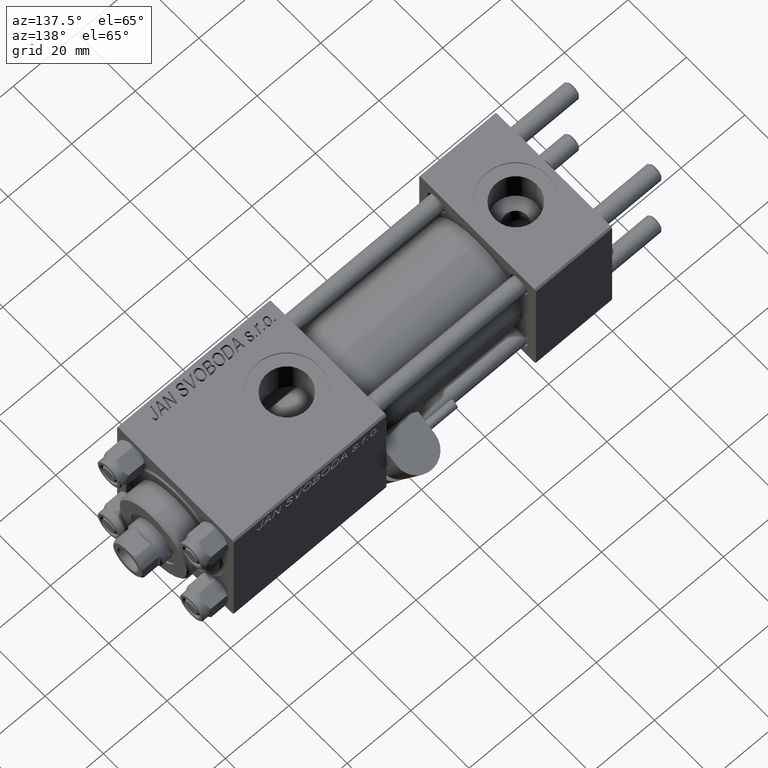
[diagram: clean part render]
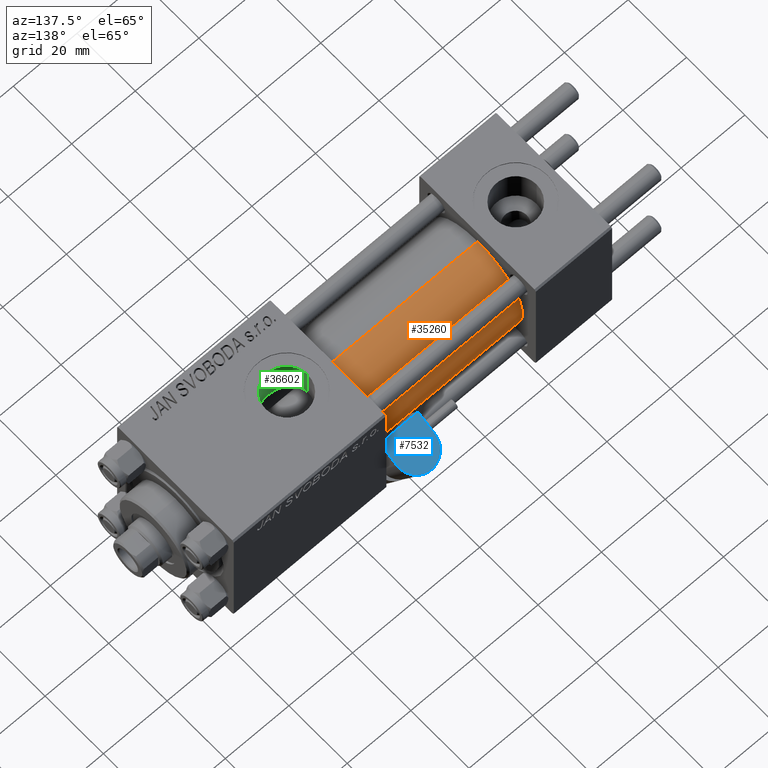
[diagram: same view with three faces highlighted in distinct colors, each labeled with its STEP entity id]
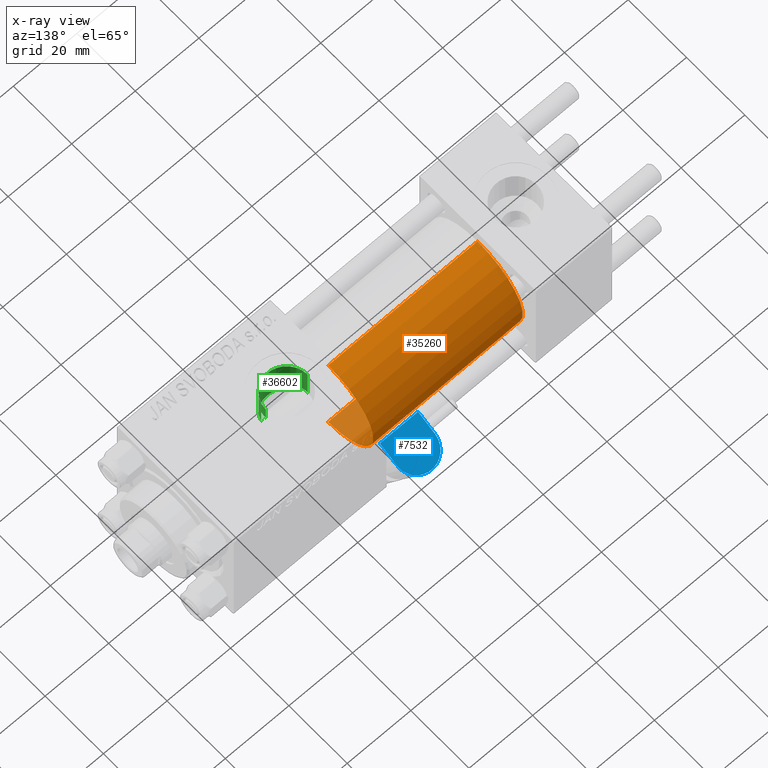
[diagram: x-ray of the same camera — body ghosted, the three highlighted faces saturated]
A machine part, auxiliary view with three faces highlighted in distinct colors.
The next image is the same camera in x-ray (body ghosted, the three faces saturated) — at least one of them is partly hidden behind the body in this view.
Their STEP definitions:

[orange] entity #35260 — the highlighted cylindrical surface (partial cylindrical patch) has radius 15.5 mm, axis along (-1, -0, -0).
#1888 = DIRECTION ( 'NONE',  ( 1.000000000000000000, 0.000000000000000000, 0.000000000000000000 ) ) ;
#1912 = CARTESIAN_POINT ( 'NONE',  ( 24.00000000000000000, 0.000000000000000000, 15.50000000000000000 ) ) ;
#1923 = LINE ( 'NONE', #45106, #32257 ) ;
#3207 = ORIENTED_EDGE ( 'NONE', *, *, #39006, .F. ) ;
#3569 = CARTESIAN_POINT ( 'NONE',  ( 71.00000000000001421, 0.000000000000000000, 15.50000000000000000 ) ) ;
#7508 = DIRECTION ( 'NONE',  ( 0.000000000000000000, 0.000000000000000000, -1.000000000000000000 ) ) ;
#9900 = DIRECTION ( 'NONE',  ( -1.000000000000000000, -0.000000000000000000, -0.000000000000000000 ) ) ;
#10194 = EDGE_CURVE ( 'NONE', #41878, #16282, #46671, .T. ) ;
#10849 = DIRECTION ( 'NONE',  ( 1.000000000000000000, 0.000000000000000000, 0.000000000000000000 ) ) ;
#14656 = AXIS2_PLACEMENT_3D ( 'NONE', #25541, #1888, #18092 ) ;
#15523 = DIRECTION ( 'NONE',  ( -1.000000000000000000, -0.000000000000000000, -0.000000000000000000 ) ) ;
#16282 = VERTEX_POINT ( 'NONE', #1912 ) ;
#16593 = ORIENTED_EDGE ( 'NONE', *, *, #49947, .F. ) ;
#16838 = CARTESIAN_POINT ( 'NONE',  ( 24.00000000000000000, 1.898202538678397557E-15, -15.50000000000000000 ) ) ;
#18092 = DIRECTION ( 'NONE',  ( 0.000000000000000000, 0.000000000000000000, 1.000000000000000000 ) ) ;
#18357 = AXIS2_PLACEMENT_3D ( 'NONE', #50126, #23144, #34683 ) ;
#21168 = AXIS2_PLACEMENT_3D ( 'NONE', #30367, #10849, #7508 ) ;
#21573 = VERTEX_POINT ( 'NONE', #23873 ) ;
#23144 = DIRECTION ( 'NONE',  ( -1.000000000000000000, -0.000000000000000000, -0.000000000000000000 ) ) ;
#23472 = ORIENTED_EDGE ( 'NONE', *, *, #31087, .T. ) ;
#23873 = CARTESIAN_POINT ( 'NONE',  ( 71.00000000000001421, 1.898202538678397557E-15, -15.50000000000000000 ) ) ;
#25541 = CARTESIAN_POINT ( 'NONE',  ( 24.00000000000000000, 0.000000000000000000, 0.000000000000000000 ) ) ;
#26957 = VERTEX_POINT ( 'NONE', #3569 ) ;
#30367 = CARTESIAN_POINT ( 'NONE',  ( 71.00000000000001421, 0.000000000000000000, 0.000000000000000000 ) ) ;
#31087 = EDGE_CURVE ( 'NONE', #21573, #41878, #35772, .T. ) ;
#32257 = VECTOR ( 'NONE', #9900, 1000.000000000000000 ) ;
#34683 = DIRECTION ( 'NONE',  ( 0.000000000000000000, 0.000000000000000000, 1.000000000000000000 ) ) ;
#35260 = ADVANCED_FACE ( 'NONE', ( #46785 ), #42164, .T. ) ;
#35772 = LINE ( 'NONE', #43498, #49382 ) ;
#38405 = CIRCLE ( 'NONE', #21168, 15.50000000000000000 ) ;
#39006 = EDGE_CURVE ( 'NONE', #26957, #16282, #1923, .T. ) ;
#41878 = VERTEX_POINT ( 'NONE', #16838 ) ;
#42164 = CYLINDRICAL_SURFACE ( 'NONE', #18357, 15.50000000000000000 ) ;
#43498 = CARTESIAN_POINT ( 'NONE',  ( 71.00000000000001421, 1.898202538678397557E-15, -15.50000000000000000 ) ) ;
#45105 = ORIENTED_EDGE ( 'NONE', *, *, #10194, .T. ) ;
#45106 = CARTESIAN_POINT ( 'NONE',  ( 71.00000000000001421, 0.000000000000000000, 15.50000000000000000 ) ) ;
#46671 = CIRCLE ( 'NONE', #14656, 15.50000000000000000 ) ;
#46785 = FACE_OUTER_BOUND ( 'NONE', #47003, .T. ) ;
#47003 = EDGE_LOOP ( 'NONE', ( #16593, #23472, #45105, #3207 ) ) ;
#49382 = VECTOR ( 'NONE', #15523, 1000.000000000000000 ) ;
#49947 = EDGE_CURVE ( 'NONE', #21573, #26957, #38405, .T. ) ;
#50126 = CARTESIAN_POINT ( 'NONE',  ( 71.00000000000001421, 0.000000000000000000, 0.000000000000000000 ) ) ;

[blue] entity #7532 — the highlighted planar face has unit normal (0, 0.4495, 0.8933).
#275 = VERTEX_POINT ( 'NONE', #33742 ) ;
#2030 = CARTESIAN_POINT ( 'NONE',  ( 27.24000000000000199, 0.000000000000000000, 6.000000000000005329 ) ) ;
#2799 = ORIENTED_EDGE ( 'NONE', *, *, #7553, .T. ) ;
#3191 = DIRECTION ( 'NONE',  ( -0.000000000000000000, 1.000000000000000000, 1.334402673828313339E-16 ) ) ;
#7532 = ADVANCED_FACE ( 'NONE', ( #27350 ), #19890, .T. ) ;
#7553 = EDGE_CURVE ( 'NONE', #37824, #22471, #47893, .T. ) ;
#7967 = AXIS2_PLACEMENT_3D ( 'NONE', #20140, #43277, #40169 ) ;
#9020 = ORIENTED_EDGE ( 'NONE', *, *, #10583, .T. ) ;
#9049 = DIRECTION ( 'NONE',  ( 1.000000000000000000, 0.000000000000000000, 0.000000000000000000 ) ) ;
#10583 = EDGE_CURVE ( 'NONE', #275, #37824, #16192, .T. ) ;
#12151 = CARTESIAN_POINT ( 'NONE',  ( 27.24000000000000199, 0.000000000000000000, -6.000000000000000000 ) ) ;
#13183 = DIRECTION ( 'NONE',  ( 0.000000000000000000, 0.000000000000000000, -1.000000000000000000 ) ) ;
#16192 = CIRCLE ( 'NONE', #33387, 6.000000000000002665 ) ;
#19890 = PLANE ( 'NONE',  #7967 ) ;
#20140 = CARTESIAN_POINT ( 'NONE',  ( 27.24000000000000199, 6.500000000000000000, 2.255140518769849223E-14 ) ) ;
#20393 = CARTESIAN_POINT ( 'NONE',  ( 27.24000000000000199, 6.499999999999999112, 6.000000000000006217 ) ) ;
#22471 = VERTEX_POINT ( 'NONE', #2030 ) ;
#22714 = LINE ( 'NONE', #38381, #44475 ) ;
#23143 = VECTOR ( 'NONE', #13183, 1000.000000000000000 ) ;
#23494 = EDGE_CURVE ( 'NONE', #22471, #30760, #35767, .T. ) ;
#24478 = CARTESIAN_POINT ( 'NONE',  ( 27.24000000000000199, 0.000000000000000000, 6.000000000000005329 ) ) ;
#25190 = EDGE_LOOP ( 'NONE', ( #36302, #9020, #2799, #46169 ) ) ;
#25730 = DIRECTION ( 'NONE',  ( 0.000000000000000000, 0.000000000000000000, -1.000000000000000000 ) ) ;
#27350 = FACE_OUTER_BOUND ( 'NONE', #25190, .T. ) ;
#30760 = VERTEX_POINT ( 'NONE', #12151 ) ;
#31058 = EDGE_CURVE ( 'NONE', #30760, #275, #22714, .T. ) ;
#33387 = AXIS2_PLACEMENT_3D ( 'NONE', #37024, #9049, #25730 ) ;
#33742 = CARTESIAN_POINT ( 'NONE',  ( 27.24000000000000199, 6.500000000000000000, -5.999999999999980460 ) ) ;
#35767 = LINE ( 'NONE', #24478, #23143 ) ;
#36302 = ORIENTED_EDGE ( 'NONE', *, *, #31058, .T. ) ;
#37024 = CARTESIAN_POINT ( 'NONE',  ( 27.24000000000000199, 6.500000000000000000, 2.255140518769849223E-14 ) ) ;
#37824 = VERTEX_POINT ( 'NONE', #39507 ) ;
#38381 = CARTESIAN_POINT ( 'NONE',  ( 27.24000000000000199, 6.500000000000000000, -5.999999999999999112 ) ) ;
#39154 = DIRECTION ( 'NONE',  ( 0.000000000000000000, -1.000000000000000000, -1.334402673828313339E-16 ) ) ;
#39507 = CARTESIAN_POINT ( 'NONE',  ( 27.24000000000000199, 6.499999999999999112, 6.000000000000006217 ) ) ;
#40169 = DIRECTION ( 'NONE',  ( 0.000000000000000000, 0.000000000000000000, -1.000000000000000000 ) ) ;
#43277 = DIRECTION ( 'NONE',  ( 1.000000000000000000, 0.000000000000000000, 0.000000000000000000 ) ) ;
#44475 = VECTOR ( 'NONE', #3191, 1000.000000000000000 ) ;
#46169 = ORIENTED_EDGE ( 'NONE', *, *, #23494, .T. ) ;
#47893 = LINE ( 'NONE', #20393, #49818 ) ;
#49818 = VECTOR ( 'NONE', #39154, 1000.000000000000000 ) ;

[green] entity #36602 — the highlighted cylindrical surface (edge-blend (fillet) strip) has radius 6.58 mm, axis along (0, 0, -1).
#28 = ORIENTED_EDGE ( 'NONE', *, *, #45094, .T. ) ;
#100 = CARTESIAN_POINT ( 'NONE',  ( 90.58000000000154728, 1.836897619300433381E-15, 15.00000000000000000 ) ) ;
#347 = CARTESIAN_POINT ( 'NONE',  ( 80.16020215073048405, -5.356874842517142632, 8.448716332623810388 ) ) ;
#1108 = CARTESIAN_POINT ( 'NONE',  ( 90.39284622331669539, -1.591040247564623700, 14.91861279833453757 ) ) ;
#1820 = EDGE_CURVE ( 'NONE', #23675, #11099, #21218, .T. ) ;
#2104 = EDGE_CURVE ( 'NONE', #29417, #24937, #44721, .T. ) ;
#2599 = B_SPLINE_CURVE_WITH_KNOTS ( 'NONE', 3,
 ( #32950, #43524, #23990, #16307, #1108, #28603 ),
 .UNSPECIFIED., .F., .F.,
 ( 4, 2, 4 ),
 ( 0.001923267627926015643, 0.002881828648815649985, 0.003840389669705283893 ),
 .UNSPECIFIED. ) ;
#2910 = CARTESIAN_POINT ( 'NONE',  ( 77.41999999999846693, -1.734723475976806897E-15, 42.80000000000000426 ) ) ;
#3208 = CARTESIAN_POINT ( 'NONE',  ( 85.05563542025694801, -6.507095227759212008, 7.594134426896898660 ) ) ;
#4460 = CARTESIAN_POINT ( 'NONE',  ( 79.29730408322323854, -4.618177244596259889, 8.875509752877485781 ) ) ;
#4714 = CARTESIAN_POINT ( 'NONE',  ( 78.91948560029506154, -4.185857250486422210, 9.083179932574980242 ) ) ;
#4762 = ORIENTED_EDGE ( 'NONE', *, *, #48630, .T. ) ;
#6728 = CARTESIAN_POINT ( 'NONE',  ( 90.30000000000001137, -1.899052395280420136, 9.818024241158690657 ) ) ;
#6814 = CARTESIAN_POINT ( 'NONE',  ( 88.19718467613775204, -5.071121963172631197, 8.619888602053425330 ) ) ;
#7070 = CARTESIAN_POINT ( 'NONE',  ( 86.92434068310684836, -5.907044672534588869, 8.071096920454994716 ) ) ;
#7100 = VECTOR ( 'NONE', #46191, 1000.000000000000000 ) ;
#7186 = EDGE_LOOP ( 'NONE', ( #22537, #28, #4762, #22934, #43134, #50037 ) ) ;
#8068 = CARTESIAN_POINT ( 'NONE',  ( 77.41999999999846693, 1.225496641077837722E-15, 9.999999999999998224 ) ) ;
#8574 = CARTESIAN_POINT ( 'NONE',  ( 78.46622740148208663, -3.565203004854784474, 9.344512687240586146 ) ) ;
#8578 = CARTESIAN_POINT ( 'NONE',  ( 84.00000000000000000, -1.734723475976806897E-15, 19.80000000000000071 ) ) ;
#9085 = DIRECTION ( 'NONE',  ( -0.000000000000000000, -0.000000000000000000, -1.000000000000000000 ) ) ;
#10300 = CARTESIAN_POINT ( 'NONE',  ( 77.41999999999846693, 1.225496641077837722E-15, 9.999999999999998224 ) ) ;
#10917 = CARTESIAN_POINT ( 'NONE',  ( 85.64143006621837628, -6.375121249720390182, 7.704616833470068649 ) ) ;
#11099 = VERTEX_POINT ( 'NONE', #14502 ) ;
#12089 = DIRECTION ( 'NONE',  ( -1.000000000000000000, 0.000000000000000000, 0.000000000000000000 ) ) ;
#12601 = VECTOR ( 'NONE', #26296, 1000.000000000000000 ) ;
#12704 = AXIS2_PLACEMENT_3D ( 'NONE', #8578, #9085, #13207 ) ;
#13207 = DIRECTION ( 'NONE',  ( 1.000000000000000000, 0.000000000000000000, 0.000000000000000000 ) ) ;
#14502 = CARTESIAN_POINT ( 'NONE',  ( 90.30000000000001137, -1.899052395280420136, 14.87930105885285670 ) ) ;
#14529 = CARTESIAN_POINT ( 'NONE',  ( 89.47667727346387778, -3.667500690329295931, 9.309199649381490360 ) ) ;
#14856 = CARTESIAN_POINT ( 'NONE',  ( 90.58000000000154728, -9.289058821376597120E-16, 42.80000000000000426 ) ) ;
#15291 = CARTESIAN_POINT ( 'NONE',  ( 86.21002104074251804, -6.200884946022790167, 7.845702732414576275 ) ) ;
#16045 = CARTESIAN_POINT ( 'NONE',  ( 77.99714712711040931, -2.723766581249583485, 9.629423614267258458 ) ) ;
#16307 = CARTESIAN_POINT ( 'NONE',  ( 90.46247493449395449, -1.278752734038846484, 14.94875937294843737 ) ) ;
#18374 = CARTESIAN_POINT ( 'NONE',  ( 90.18384735178129574, -2.284382302762963501, 9.743491762341799145 ) ) ;
#18885 = CARTESIAN_POINT ( 'NONE',  ( 82.83871781191031403, -6.479820246555592966, 7.616654439233103702 ) ) ;
#20127 = CARTESIAN_POINT ( 'NONE',  ( 77.78468472322818172, -2.169203254887546617, 9.763745855050723677 ) ) ;
#21218 = LINE ( 'NONE', #44351, #39783 ) ;
#22223 = CARTESIAN_POINT ( 'NONE',  ( 90.30000000000001137, -1.899052395280420136, 9.818024241158690657 ) ) ;
#22537 = ORIENTED_EDGE ( 'NONE', *, *, #2104, .F. ) ;
#22731 = CARTESIAN_POINT ( 'NONE',  ( 84.04743762832036680, -6.582974628388996940, 7.527585999843090292 ) ) ;
#22934 = ORIENTED_EDGE ( 'NONE', *, *, #1820, .F. ) ;
#23487 = CARTESIAN_POINT ( 'NONE',  ( 77.56705469300284506, -1.397686090543303283, 9.903818455115036556 ) ) ;
#23648 = DIRECTION ( 'NONE',  ( 0.000000000000000000, 0.000000000000000000, -1.000000000000000000 ) ) ;
#23675 = VERTEX_POINT ( 'NONE', #6728 ) ;
#23982 = CARTESIAN_POINT ( 'NONE',  ( 77.72104259078042787, -1.977670684214428043, 9.804446867313098224 ) ) ;
#23990 = CARTESIAN_POINT ( 'NONE',  ( 90.55605924908761040, -0.6456608678150235203, 14.98945420583744870 ) ) ;
#24937 = VERTEX_POINT ( 'NONE', #46244 ) ;
#24959 = AXIS2_PLACEMENT_3D ( 'NONE', #28252, #23648, #12089 ) ;
#25264 = VERTEX_POINT ( 'NONE', #100 ) ;
#26296 = DIRECTION ( 'NONE',  ( 0.000000000000000000, 0.000000000000000000, -1.000000000000000000 ) ) ;
#26585 = CARTESIAN_POINT ( 'NONE',  ( 83.84132420776212768, -6.581215419008478840, 7.529131557805247787 ) ) ;
#26836 = CARTESIAN_POINT ( 'NONE',  ( 84.65744280686338641, -6.559709605006789346, 7.547889352008899877 ) ) ;
#27092 = CARTESIAN_POINT ( 'NONE',  ( 86.39211994537743067, -6.132805105780794186, 7.899218132206713427 ) ) ;
#27162 = B_SPLINE_CURVE_WITH_KNOTS ( 'NONE', 3,
 ( #22223, #18374, #42007, #34019, #14529, #30179, #46124, #30437, #6814, #30687, #45872, #38135, #7070, #27092, #15291, #46374, #10917, #3208, #26836, #22731, #26585, #50471, #38398, #18885, #30936, #42768, #34530, #50223, #32174, #35287, #347, #39143, #4460, #4714, #31678, #27339, #8574, #36041, #16045, #20127, #23982, #43266, #23487, #47375, #47127, #8068 ),
 .UNSPECIFIED., .F., .F.,
 ( 4, 2, 2, 2, 2, 2, 2, 2, 2, 2, 2, 2, 2, 2, 2, 2, 2, 2, 2, 2, 2, 2, 4 ),
 ( 0.000000000000000000, 0.001207791230099372441, 0.002415582460198744882, 0.003623373690298115155, 0.004227269305347786631, 0.004831164920397457672, 0.006038956150496800623, 0.006642851765546489880, 0.007246747380596180003, 0.008454538610695601017, 0.009058434225745329305, 0.009662329840795061062, 0.01026622545584479108, 0.01087012107089451937, 0.01207791230099397942, 0.01328570353109343946, 0.01449349476119290124, 0.01509739037624264514, 0.01570128599129239078, 0.01690907722139185429, 0.01751297283644158778, 0.01811686845149132127, 0.01932465968159079173 ),
 .UNSPECIFIED. ) ;
#27339 = CARTESIAN_POINT ( 'NONE',  ( 78.57242859662287060, -3.724876030303978069, 9.281895439158068584 ) ) ;
#27500 = FACE_OUTER_BOUND ( 'NONE', #7186, .T. ) ;
#28252 = CARTESIAN_POINT ( 'NONE',  ( 84.00000000000000000, -1.734723475976806897E-15, 42.80000000000000426 ) ) ;
#28603 = CARTESIAN_POINT ( 'NONE',  ( 90.30000000000001137, -1.899052395280420136, 14.87930105885285670 ) ) ;
#29417 = VERTEX_POINT ( 'NONE', #44876 ) ;
#30179 = CARTESIAN_POINT ( 'NONE',  ( 89.01171256368644435, -4.281038711601321545, 9.043476487246550732 ) ) ;
#30437 = CARTESIAN_POINT ( 'NONE',  ( 88.34134544482054707, -4.948221379670047604, 8.691185487698470880 ) ) ;
#30507 = LINE ( 'NONE', #14856, #7100 ) ;
#30687 = CARTESIAN_POINT ( 'NONE',  ( 87.89699318866286148, -5.305288046703262594, 8.477775428654018341 ) ) ;
#30936 = CARTESIAN_POINT ( 'NONE',  ( 82.64228046384747017, -6.441510615516904181, 7.649229527461429257 ) ) ;
#31678 = CARTESIAN_POINT ( 'NONE',  ( 78.79875737437667738, -4.034886358906389248, 9.151392050136836431 ) ) ;
#32174 = CARTESIAN_POINT ( 'NONE',  ( 81.15150766959031614, -5.943877247083126925, 8.044991576418468071 ) ) ;
#32950 = CARTESIAN_POINT ( 'NONE',  ( 90.58000000000154728, 1.836897619300433381E-15, 15.00000000000000000 ) ) ;
#34019 = CARTESIAN_POINT ( 'NONE',  ( 89.68316260257665817, -3.338928794743214468, 9.433056230293079381 ) ) ;
#34530 = CARTESIAN_POINT ( 'NONE',  ( 82.06128195139868353, -6.290973204691355569, 7.773687993804112573 ) ) ;
#34971 = EDGE_CURVE ( 'NONE', #24937, #40180, #47092, .T. ) ;
#35287 = CARTESIAN_POINT ( 'NONE',  ( 80.48004077057568395, -5.572564248888139282, 8.306509127488531874 ) ) ;
#36041 = CARTESIAN_POINT ( 'NONE',  ( 78.16834223545102134, -3.071777053897142729, 9.522948337697433985 ) ) ;
#36602 = ADVANCED_FACE ( 'NONE', ( #27500 ), #40326, .F. ) ;
#36872 = DIRECTION ( 'NONE',  ( -0.000000000000000000, -0.000000000000000000, 1.000000000000000000 ) ) ;
#38135 = CARTESIAN_POINT ( 'NONE',  ( 87.26053252520590320, -5.728070196491263921, 8.200680661955367157 ) ) ;
#38398 = CARTESIAN_POINT ( 'NONE',  ( 83.23563096081821300, -6.538530929802691460, 7.566314066596407706 ) ) ;
#39110 = EDGE_CURVE ( 'NONE', #23675, #40180, #27162, .T. ) ;
#39143 = CARTESIAN_POINT ( 'NONE',  ( 79.57031396582577543, -4.880372653833860319, 8.732632965334568453 ) ) ;
#39783 = VECTOR ( 'NONE', #36872, 1000.000000000000000 ) ;
#40180 = VERTEX_POINT ( 'NONE', #10300 ) ;
#40326 = CYLINDRICAL_SURFACE ( 'NONE', #24959, 6.580000000001542837 ) ;
#42007 = CARTESIAN_POINT ( 'NONE',  ( 90.03601729897108896, -2.648259396322893089, 9.649752199410302822 ) ) ;
#42768 = CARTESIAN_POINT ( 'NONE',  ( 82.25327158685063011, -6.347078162380216604, 7.727766182684421281 ) ) ;
#43134 = ORIENTED_EDGE ( 'NONE', *, *, #39110, .T. ) ;
#43266 = CARTESIAN_POINT ( 'NONE',  ( 77.61241581301695192, -1.592248641449762747, 9.874366003595781649 ) ) ;
#43524 = CARTESIAN_POINT ( 'NONE',  ( 90.58000000000156149, -0.3230844264541308797, 14.99999999999999822 ) ) ;
#44351 = CARTESIAN_POINT ( 'NONE',  ( 90.30000000000001137, -1.899052395280420136, 42.80000000000000426 ) ) ;
#44721 = CIRCLE ( 'NONE', #12704, 6.580000000001542837 ) ;
#44876 = CARTESIAN_POINT ( 'NONE',  ( 90.58000000000154728, -9.289058821376599092E-16, 19.80000000000000071 ) ) ;
#45094 = EDGE_CURVE ( 'NONE', #29417, #25264, #30507, .T. ) ;
#45872 = CARTESIAN_POINT ( 'NONE',  ( 87.74050804270864035, -5.416766998257490862, 8.406790300727948306 ) ) ;
#46124 = CARTESIAN_POINT ( 'NONE',  ( 88.75695250607545006, -4.561896889324866144, 8.903678834413629062 ) ) ;
#46191 = DIRECTION ( 'NONE',  ( 0.000000000000000000, 0.000000000000000000, -1.000000000000000000 ) ) ;
#46244 = CARTESIAN_POINT ( 'NONE',  ( 77.41999999999846693, -1.734723475976806897E-15, 19.80000000000000071 ) ) ;
#46374 = CARTESIAN_POINT ( 'NONE',  ( 85.83530013697877337, -6.321933289868085559, 7.748495657718812879 ) ) ;
#47092 = LINE ( 'NONE', #2910, #12601 ) ;
#47127 = CARTESIAN_POINT ( 'NONE',  ( 77.41999999999848114, -0.4081853129699585803, 10.00000000000000711 ) ) ;
#47375 = CARTESIAN_POINT ( 'NONE',  ( 77.45763783829498550, -0.8084208477571691587, 9.975121118623741623 ) ) ;
#48630 = EDGE_CURVE ( 'NONE', #25264, #11099, #2599, .T. ) ;
#50037 = ORIENTED_EDGE ( 'NONE', *, *, #34971, .F. ) ;
#50223 = CARTESIAN_POINT ( 'NONE',  ( 81.50365122394816808, -6.100731835174567408, 7.925108619061488113 ) ) ;
#50471 = CARTESIAN_POINT ( 'NONE',  ( 83.43610688730976221, -6.558932760434257325, 7.548550817887899278 ) ) ;